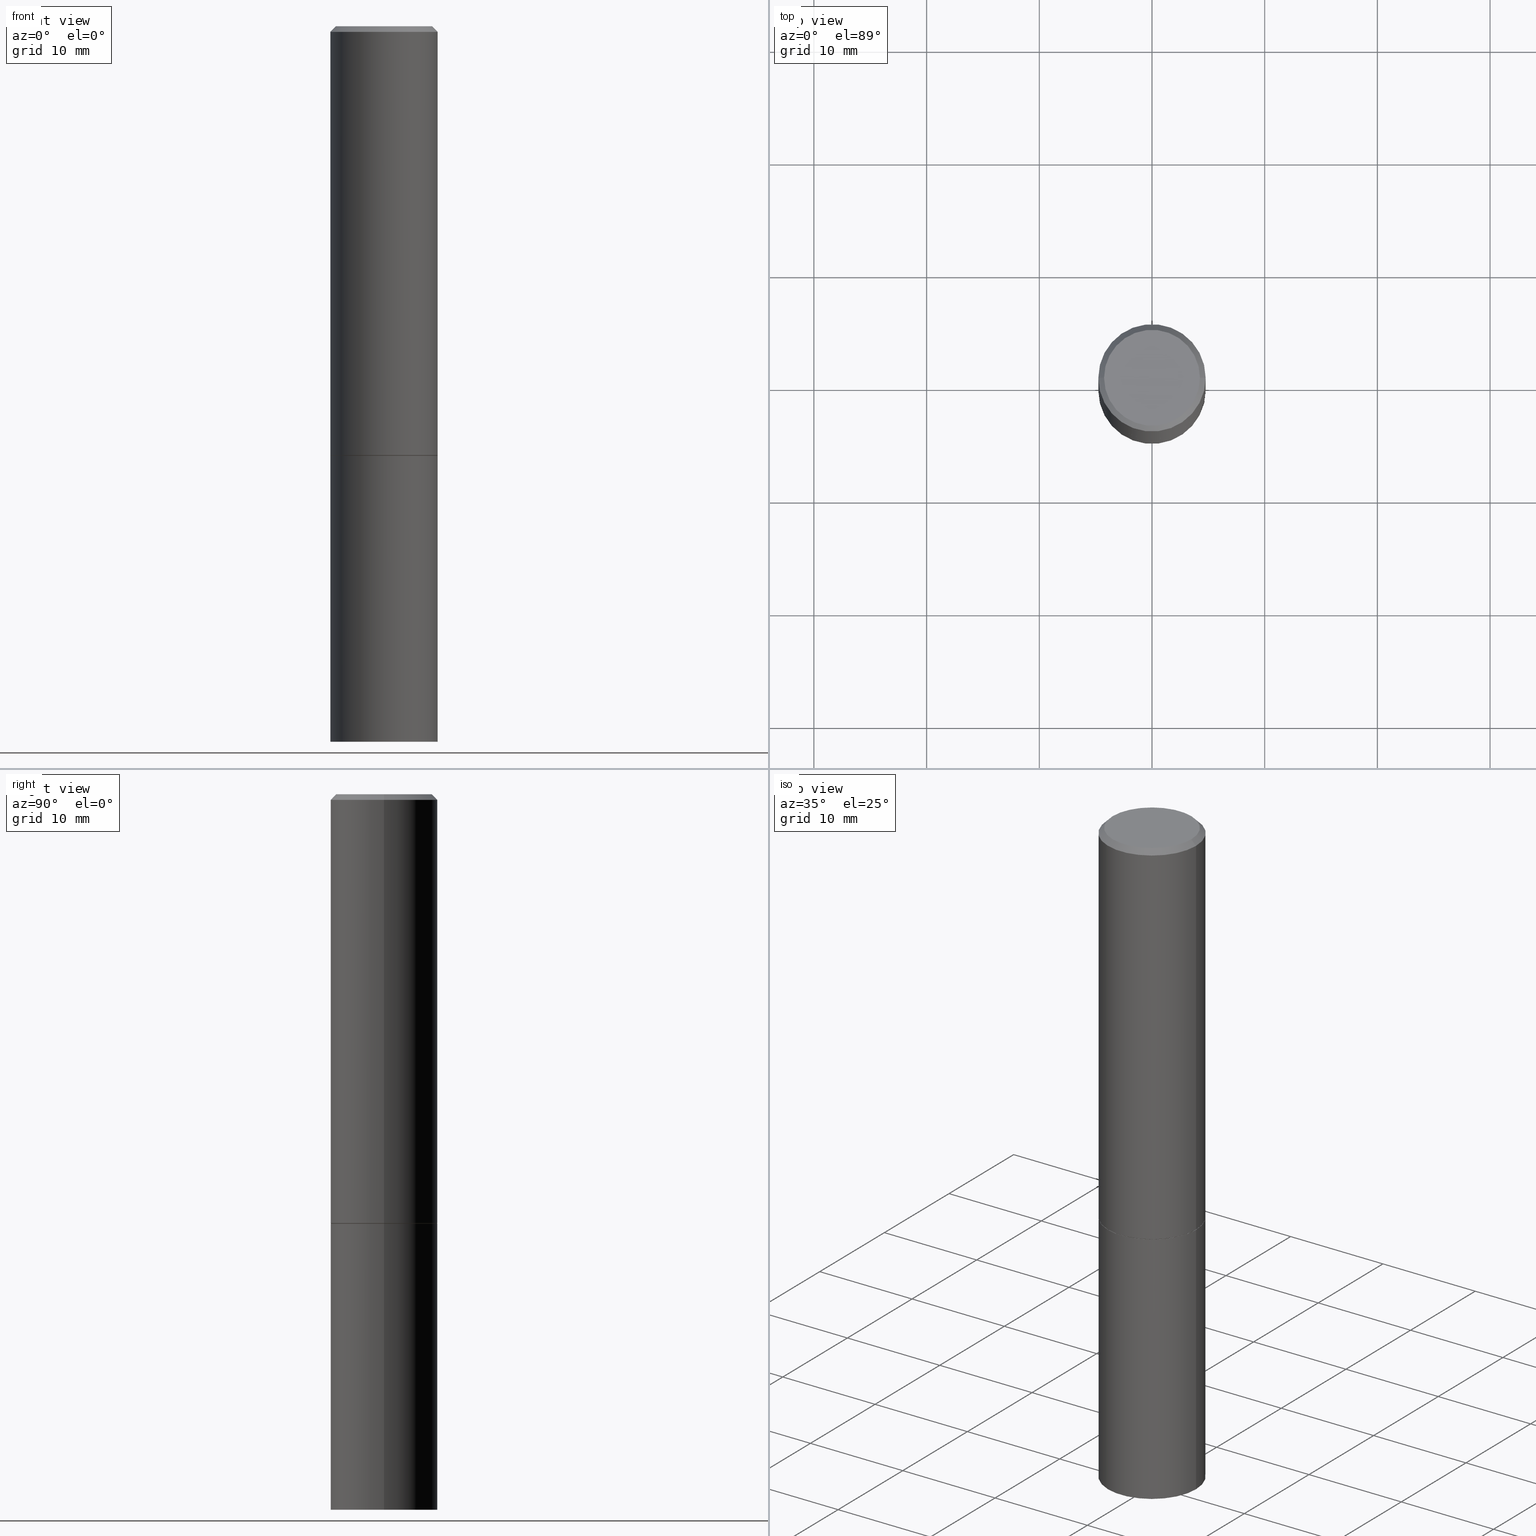
[diagram: canonical four-view strip — front | top / right | iso, engineering-drawing reading convention]
A machine part, canonical four-view strip (front | top / right | iso — engineering-drawing reading convention). The complete STEP part file that produces these views, byte-faithful:
ISO-10303-21;
HEADER;
FILE_DESCRIPTION (( 'STEP AP203' ),
    '1' );
FILE_NAME ('39547.STEP',
    '2024-02-28T00:49:12',
    ( '' ),
    ( '' ),
    'SwSTEP 2.0',
    'SolidWorks 2023',
    '' );
FILE_SCHEMA (( 'CONFIG_CONTROL_DESIGN' ));
ENDSEC;

DATA;
#1 = CARTESIAN_POINT ( 'NONE',  ( 3.665757740471519853E-29, -5.233730526925875958E-15, -1.499000000000000110 ) ) ;
#2 = VECTOR ( 'NONE', #195, 39.37007874015748143 ) ;
#3 = ORIENTED_EDGE ( 'NONE', *, *, #94, .T. ) ;
#4 = FACE_OUTER_BOUND ( 'NONE', #41, .T. ) ;
#5 = ORIENTED_EDGE ( 'NONE', *, *, #9, .F. ) ;
#6 = CARTESIAN_POINT ( 'NONE',  ( 0.1674999999999998157, -1.252653207992877105E-15, 8.469775550109232378E-30 ) ) ;
#7 = ORIENTED_EDGE ( 'NONE', *, *, #194, .F. ) ;
#8 = CC_DESIGN_APPROVAL ( #222, ( #348 ) ) ;
#9 = EDGE_CURVE ( 'NONE', #275, #179, #149, .T. ) ;
#10 = ORIENTED_EDGE ( 'NONE', *, *, #232, .T. ) ;
#11 = VERTEX_POINT ( 'NONE', #12 ) ;
#12 = CARTESIAN_POINT ( 'NONE',  ( -0.1875000000000000278, -5.650695048136103317E-15, -2.500000000000000000 ) ) ;
#13 = CARTESIAN_POINT ( 'NONE',  ( 0.1874999999999998057, -1.356173001359023888E-15, -0.02000000000000004205 ) ) ;
#14 = DIRECTION ( 'NONE',  ( 2.438088387897960049E-29, -3.491481338843145188E-15, -1.000000000000000000 ) ) ;
#15 = EDGE_CURVE ( 'NONE', #179, #329, #351, .T. ) ;
#16 = DIMENSIONAL_EXPONENTS ( 1.000000000000000000, 0.000000000000000000, 0.000000000000000000, 0.000000000000000000, 0.000000000000000000, 0.000000000000000000, 0.000000000000000000 ) ;
#17 = ORIENTED_EDGE ( 'NONE', *, *, #261, .F. ) ;
#18 = CC_DESIGN_PERSON_AND_ORGANIZATION_ASSIGNMENT ( #161, #276, ( #308 ) ) ;
#19 = ORIENTED_EDGE ( 'NONE', *, *, #169, .T. ) ;
#20 = PERSON_AND_ORGANIZATION ( #35, #178 ) ;
#21 = DIRECTION ( 'NONE',  ( 1.000000000000000000, -6.982962677686269077E-15, 0.000000000000000000 ) ) ;
#22 = AXIS2_PLACEMENT_3D ( 'NONE', #47, #319, #92 ) ;
#23 = ORIENTED_EDGE ( 'NONE', *, *, #109, .T. ) ;
#24 = CC_DESIGN_PERSON_AND_ORGANIZATION_ASSIGNMENT ( #252, #328, ( #348 ) ) ;
#25 = COORDINATED_UNIVERSAL_TIME_OFFSET ( 5, 0, .BEHIND. ) ;
#26 = CARTESIAN_POINT ( 'NONE',  ( -0.1674999999999998157, 1.204561061900879272E-15, -8.301862719484101980E-30 ) ) ;
#27 = APPROVAL_ROLE ( '' ) ;
#28 = LINE ( 'NONE', #359, #321 ) ;
#29 = PERSON_AND_ORGANIZATION ( #35, #178 ) ;
#30 = UNCERTAINTY_MEASURE_WITH_UNIT (LENGTH_MEASURE( 1.000000000000000082E-05 ), #241, 'distance_accuracy_value', 'NONE');
#31 = ADVANCED_FACE ( 'NONE', ( #53 ), #156, .F. ) ;
#32 = DIRECTION ( 'NONE',  ( 0.000000000000000000, 0.000000000000000000, 1.000000000000000000 ) ) ;
#33 = LINE ( 'NONE', #86, #2 ) ;
#34 =( GEOMETRIC_REPRESENTATION_CONTEXT ( 3 ) GLOBAL_UNCERTAINTY_ASSIGNED_CONTEXT ( ( #30 ) ) GLOBAL_UNIT_ASSIGNED_CONTEXT ( ( #241, #323, #350 ) ) REPRESENTATION_CONTEXT ( 'NONE', 'WORKASPACE' ) );
#35 = PERSON ( 'UNSPECIFIED', 'UNSPECIFIED', 'UNSPECIFIED', ('UNSPECIFIED'), ('UNSPECIFIED'), ('UNSPECIFIED') ) ;
#36 = LINE ( 'NONE', #166, #143 ) ;
#37 = CALENDAR_DATE ( 2024, 27, 2 ) ;
#38 = CARTESIAN_POINT ( 'NONE',  ( 4.890937612370283668E-31, -6.982962677686305168E-17, -0.02000000000000004205 ) ) ;
#39 = COORDINATED_UNIVERSAL_TIME_OFFSET ( 5, 0, .BEHIND. ) ;
#40 = APPLICATION_CONTEXT ( 'configuration controlled 3d designs of mechanical parts and assemblies' ) ;
#41 = EDGE_LOOP ( 'NONE', ( #163, #324, #301, #358 ) ) ;
#42 = VECTOR ( 'NONE', #340, 39.37007874015748143 ) ;
#43 = DIRECTION ( 'NONE',  ( -2.445468806185136597E-29, 3.491481338843145583E-15, 1.000000000000000000 ) ) ;
#44 = ORIENTED_EDGE ( 'NONE', *, *, #15, .F. ) ;
#45 = CARTESIAN_POINT ( 'NONE',  ( 3.668203209277706016E-29, -5.237222008264719754E-15, -1.500000000000000444 ) ) ;
#46 = ORIENTED_EDGE ( 'NONE', *, *, #61, .F. ) ;
#47 = CARTESIAN_POINT ( 'NONE',  ( 0.000000000000000000, 0.000000000000000000, 0.000000000000000000 ) ) ;
#48 = VECTOR ( 'NONE', #217, 39.37007874015748143 ) ;
#49 = LOCAL_TIME ( 19, 49, 12.00000000000000000, #365 ) ;
#50 = ORIENTED_EDGE ( 'NONE', *, *, #363, .T. ) ;
#51 = MANIFOLD_SOLID_BREP ( 'Body-Move/Copy2[1]', #135 ) ;
#52 = DIRECTION ( 'NONE',  ( -2.445468806185136597E-29, 3.491481338843145583E-15, 1.000000000000000000 ) ) ;
#53 = FACE_OUTER_BOUND ( 'NONE', #267, .T. ) ;
#54 = AXIS2_PLACEMENT_3D ( 'NONE', #45, #162, #21 ) ;
#55 = MANIFOLD_SOLID_BREP ( 'Body-Move/Copy2[2]', #278 ) ;
#56 = EDGE_CURVE ( 'NONE', #292, #329, #28, .T. ) ;
#57 = CIRCLE ( 'NONE', #233, 0.1875000000000000278 ) ;
#58 = DIRECTION ( 'NONE',  ( 1.000000000000000000, -6.982962677686265922E-15, 4.876176775795935793E-29 ) ) ;
#59 = APPLICATION_PROTOCOL_DEFINITION ( 'international standard', 'config_control_design', 1994, #40 ) ;
#60 = DIRECTION ( 'NONE',  ( -2.445468806185136597E-29, 3.491481338843145583E-15, 1.000000000000000000 ) ) ;
#61 = EDGE_CURVE ( 'NONE', #273, #327, #223, .T. ) ;
#62 = DATE_TIME_ROLE ( 'creation_date' ) ;
#63 = CARTESIAN_POINT ( 'NONE',  ( -0.1864999999999999714, -3.912059806072132914E-15, -1.500000000000000444 ) ) ;
#64 = COORDINATED_UNIVERSAL_TIME_OFFSET ( 5, 0, .BEHIND. ) ;
#65 = CARTESIAN_POINT ( 'NONE',  ( 4.890937612370283668E-31, -6.982962677686305168E-17, -0.02000000000000004205 ) ) ;
#66 = APPROVAL_PERSON_ORGANIZATION ( #29, #125, #27 ) ;
#67 = CC_DESIGN_PERSON_AND_ORGANIZATION_ASSIGNMENT ( #20, #108, ( #164 ) ) ;
#68 = DIRECTION ( 'NONE',  ( 1.000000000000000000, -6.982962677686266711E-15, 0.000000000000000000 ) ) ;
#69 = CC_DESIGN_PERSON_AND_ORGANIZATION_ASSIGNMENT ( #199, #341, ( #270 ) ) ;
#70 = DIRECTION ( 'NONE',  ( 1.000000000000000000, -6.982962677686266711E-15, 0.000000000000000000 ) ) ;
#71 = CARTESIAN_POINT ( 'NONE',  ( -0.1874999999999999722, -1.319512447301180399E-15, -1.499000000000000110 ) ) ;
#72 = ORIENTED_EDGE ( 'NONE', *, *, #180, .T. ) ;
#73 = CIRCLE ( 'NONE', #190, 0.1875000000000000278 ) ;
#74 = CARTESIAN_POINT ( 'NONE',  ( 0.000000000000000000, 0.000000000000000000, 0.000000000000000000 ) ) ;
#75 = EDGE_CURVE ( 'NONE', #235, #327, #73, .T. ) ;
#76 = DATE_AND_TIME ( #37, #302 ) ;
#77 = EDGE_LOOP ( 'NONE', ( #221, #98, #126, #160 ) ) ;
#78 = VECTOR ( 'NONE', #173, 39.37007874015748143 ) ;
#79 = AXIS2_PLACEMENT_3D ( 'NONE', #130, #32, #330 ) ;
#80 = DIRECTION ( 'NONE',  ( 1.000000000000000000, -6.982962677686266711E-15, 4.876176775795936914E-29 ) ) ;
#81 = ADVANCED_FACE ( 'NONE', ( #334 ), #176, .T. ) ;
#82 = CALENDAR_DATE ( 2024, 27, 2 ) ;
#83 = CARTESIAN_POINT ( 'NONE',  ( 3.668203209277704895E-29, -5.237222008264718177E-15, -1.500000000000000222 ) ) ;
#84 = APPROVAL_STATUS ( 'not_yet_approved' ) ;
#85 = AXIS2_PLACEMENT_3D ( 'NONE', #175, #315, #291 ) ;
#86 = CARTESIAN_POINT ( 'NONE',  ( 0.1864999999999999714, -6.539544547653208748E-15, -1.500000000000000444 ) ) ;
#87 = FACE_OUTER_BOUND ( 'NONE', #77, .T. ) ;
#88 = CARTESIAN_POINT ( 'NONE',  ( 0.1874999999999999167, -1.309305502066174219E-15, 9.142831454617375408E-30 ) ) ;
#89 = DIRECTION ( 'NONE',  ( -2.445468806185136597E-29, 3.491481338843145583E-15, 1.000000000000000000 ) ) ;
#90 = CC_DESIGN_DATE_AND_TIME_ASSIGNMENT ( #280, #62, ( #348 ) ) ;
#91 = DIRECTION ( 'NONE',  ( 1.000000000000000000, -6.982962677686269077E-15, 0.000000000000000000 ) ) ;
#92 = DIRECTION ( 'NONE',  ( 1.000000000000000000, -6.982962677686265922E-15, 4.876176775795935793E-29 ) ) ;
#93 = ORIENTED_EDGE ( 'NONE', *, *, #363, .F. ) ;
#94 = EDGE_CURVE ( 'NONE', #120, #355, #33, .T. ) ;
#95 = VERTEX_POINT ( 'NONE', #228 ) ;
#96 = CIRCLE ( 'NONE', #102, 0.1674999999999998157 ) ;
#97 = DIRECTION ( 'NONE',  ( -2.445468806185136597E-29, 3.491481338843145583E-15, 1.000000000000000000 ) ) ;
#98 = ORIENTED_EDGE ( 'NONE', *, *, #56, .T. ) ;
#99 = DIRECTION ( 'NONE',  ( -2.445468806185136597E-29, 3.491481338843145583E-15, 1.000000000000000000 ) ) ;
#100 = FACE_OUTER_BOUND ( 'NONE', #119, .T. ) ;
#101 = CIRCLE ( 'NONE', #338, 0.1874999999999998057 ) ;
#102 = AXIS2_PLACEMENT_3D ( 'NONE', #189, #271, #80 ) ;
#103 = DIRECTION ( 'NONE',  ( 1.000000000000000000, -6.982962677686265922E-15, 4.876176775795935793E-29 ) ) ;
#104 = CARTESIAN_POINT ( 'NONE',  ( -0.1874999999999998057, 1.239475875289310527E-15, -0.02000000000000004205 ) ) ;
#105 = CIRCLE ( 'NONE', #296, 0.1875000000000000278 ) ;
#106 = ORIENTED_EDGE ( 'NONE', *, *, #194, .T. ) ;
#107 = FACE_OUTER_BOUND ( 'NONE', #182, .T. ) ;
#108 = PERSON_AND_ORGANIZATION_ROLE ( 'classification_officer' ) ;
#109 = EDGE_CURVE ( 'NONE', #11, #273, #187, .T. ) ;
#110 = CIRCLE ( 'NONE', #54, 0.1864999999999999714 ) ;
#111 = PLANE ( 'NONE',  #215 ) ;
#112 = DIRECTION ( 'NONE',  ( -2.438088387897960049E-29, 3.491481338843145188E-15, 1.000000000000000000 ) ) ;
#113 = CARTESIAN_POINT ( 'NONE',  ( 0.000000000000000000, 0.000000000000000000, 0.000000000000000000 ) ) ;
#114 = AXIS2_PLACEMENT_3D ( 'NONE', #299, #52, #154 ) ;
#115 = CARTESIAN_POINT ( 'NONE',  ( 1.309305502066236145E-15, 0.1874999999999912847, -2.500000000000000444 ) ) ;
#116 = DATE_AND_TIME ( #142, #287 ) ;
#117 = ADVANCED_FACE ( 'NONE', ( #366 ), #111, .F. ) ;
#118 = CYLINDRICAL_SURFACE ( 'NONE', #316, 0.1874999999999999167 ) ;
#119 = EDGE_LOOP ( 'NONE', ( #72, #318, #247, #46 ) ) ;
#120 = VERTEX_POINT ( 'NONE', #250 ) ;
#121 = CIRCLE ( 'NONE', #362, 0.1875000000000000278 ) ;
#122 = CC_DESIGN_APPROVAL ( #174, ( #164 ) ) ;
#123 = CARTESIAN_POINT ( 'NONE',  ( 3.668203209277706016E-29, -5.237222008264719754E-15, -1.500000000000000444 ) ) ;
#124 = ORIENTED_EDGE ( 'NONE', *, *, #201, .F. ) ;
#125 = APPROVAL ( #84, 'UNSPECIFIED' ) ;
#126 = ORIENTED_EDGE ( 'NONE', *, *, #169, .F. ) ;
#127 = ORIENTED_EDGE ( 'NONE', *, *, #61, .T. ) ;
#128 = CIRCLE ( 'NONE', #186, 0.1874999999999998057 ) ;
#129 = APPROVAL_PERSON_ORGANIZATION ( #254, #174, #205 ) ;
#130 = CARTESIAN_POINT ( 'NONE',  ( 0.000000000000000000, 0.000000000000000000, 0.000000000000000000 ) ) ;
#131 = ORIENTED_EDGE ( 'NONE', *, *, #180, .F. ) ;
#132 = DIRECTION ( 'NONE',  ( 1.000000000000000000, -6.982962677686266711E-15, 0.000000000000000000 ) ) ;
#133 = CALENDAR_DATE ( 2024, 27, 2 ) ;
#134 = CARTESIAN_POINT ( 'NONE',  ( 6.113672015462842613E-29, -8.728703347107864943E-15, -2.500000000000000000 ) ) ;
#135 = CLOSED_SHELL ( 'NONE', ( #352, #184, #289, #244 ) ) ;
#136 = FACE_OUTER_BOUND ( 'NONE', #238, .T. ) ;
#137 = APPROVAL_DATE_TIME ( #285, #222 ) ;
#138 = EDGE_CURVE ( 'NONE', #355, #292, #57, .T. ) ;
#139 = DIRECTION ( 'NONE',  ( -0.7071067811864388819, 7.493145998869961307E-15, 0.7071067811866561525 ) ) ;
#140 = DATE_TIME_ROLE ( 'classification_date' ) ;
#141 = DIRECTION ( 'NONE',  ( -2.445468806185136597E-29, 3.491481338843145583E-15, 1.000000000000000000 ) ) ;
#142 = CALENDAR_DATE ( 2024, 27, 2 ) ;
#143 = VECTOR ( 'NONE', #200, 39.37007874015748143 ) ;
#144 = FACE_OUTER_BOUND ( 'NONE', #158, .T. ) ;
#145 = EDGE_LOOP ( 'NONE', ( #5, #106, #19, #44 ) ) ;
#146 = CARTESIAN_POINT ( 'NONE',  ( 0.1875000000000000278, -6.546527510330893974E-15, -1.500000000000000222 ) ) ;
#147 = ORIENTED_EDGE ( 'NONE', *, *, #15, .T. ) ;
#148 = DIRECTION ( 'NONE',  ( -1.000000000000000000, 6.982962677686265922E-15, -4.876176775795935793E-29 ) ) ;
#149 = CIRCLE ( 'NONE', #114, 0.1674999999999998157 ) ;
#150 = DIRECTION ( 'NONE',  ( -2.445468806185136597E-29, 3.491481338843145583E-15, 1.000000000000000000 ) ) ;
#151 = EDGE_CURVE ( 'NONE', #355, #344, #309, .T. ) ;
#152 = ORIENTED_EDGE ( 'NONE', *, *, #274, .T. ) ;
#153 = APPLICATION_PROTOCOL_DEFINITION ( 'international standard', 'config_control_design', 1994, #246 ) ;
#154 = DIRECTION ( 'NONE',  ( 1.000000000000000000, -6.982962677686266711E-15, 4.876176775795936914E-29 ) ) ;
#155 = PERSON_AND_ORGANIZATION ( #35, #178 ) ;
#156 = PLANE ( 'NONE',  #263 ) ;
#157 = EDGE_CURVE ( 'NONE', #292, #355, #105, .T. ) ;
#158 = EDGE_LOOP ( 'NONE', ( #124, #354, #3, #304 ) ) ;
#159 = CARTESIAN_POINT ( 'NONE',  ( 0.1875000000000000278, -6.543036028992050967E-15, -1.499000000000000110 ) ) ;
#160 = ORIENTED_EDGE ( 'NONE', *, *, #151, .F. ) ;
#161 = PERSON_AND_ORGANIZATION ( #35, #178 ) ;
#162 = DIRECTION ( 'NONE',  ( -2.445468806185136597E-29, 3.491481338843145583E-15, 1.000000000000000000 ) ) ;
#163 = ORIENTED_EDGE ( 'NONE', *, *, #56, .F. ) ;
#164 = SECURITY_CLASSIFICATION ( '', '', #360 ) ;
#165 = DIRECTION ( 'NONE',  ( 1.000000000000000000, -6.982962677686266711E-15, 0.000000000000000000 ) ) ;
#166 = CARTESIAN_POINT ( 'NONE',  ( 0.1874999999999998057, -1.356173001359023888E-15, -0.02000000000000004205 ) ) ;
#167 = COORDINATED_UNIVERSAL_TIME_OFFSET ( 5, 0, .BEHIND. ) ;
#168 = DIRECTION ( 'NONE',  ( -1.000000000000000000, 6.982962677686265922E-15, -4.876176775795935793E-29 ) ) ;
#169 = EDGE_CURVE ( 'NONE', #344, #329, #101, .T. ) ;
#170 = CONICAL_SURFACE ( 'NONE', #220, 0.1864999999999999714, 0.7853981633972946241 ) ;
#171 = CC_DESIGN_SECURITY_CLASSIFICATION ( #164, ( #308 ) ) ;
#172 = DIRECTION ( 'NONE',  ( -2.445468806185136597E-29, 3.491481338843145583E-15, 1.000000000000000000 ) ) ;
#173 = DIRECTION ( 'NONE',  ( -2.445468806185136877E-29, 3.491481338843145188E-15, 1.000000000000000000 ) ) ;
#174 = APPROVAL ( #339, 'UNSPECIFIED' ) ;
#175 = CARTESIAN_POINT ( 'NONE',  ( 4.890937612370283668E-31, -6.982962677686305168E-17, -0.02000000000000004205 ) ) ;
#176 = CONICAL_SURFACE ( 'NONE', #196, 0.1874999999999998057, 0.7853981633974471688 ) ;
#177 = CARTESIAN_POINT ( 'NONE',  ( 3.668203209277706016E-29, -5.237222008264719754E-15, -1.500000000000000444 ) ) ;
#178 = ORGANIZATION ( 'UNSPECIFIED', 'UNSPECIFIED', '' ) ;
#179 = VERTEX_POINT ( 'NONE', #26 ) ;
#180 = EDGE_CURVE ( 'NONE', #273, #11, #284, .T. ) ;
#181 = DIRECTION ( 'NONE',  ( -2.445468806185136597E-29, 3.491481338843145583E-15, 1.000000000000000000 ) ) ;
#182 = EDGE_LOOP ( 'NONE', ( #219, #23, #127, #260 ) ) ;
#183 = CARTESIAN_POINT ( 'NONE',  ( 1.309305502066211690E-15, 0.1874999999999947820, -1.500000000000000666 ) ) ;
#184 = ADVANCED_FACE ( 'NONE', ( #136 ), #248, .T. ) ;
#185 = DIRECTION ( 'NONE',  ( 2.438088387897960049E-29, -3.491481338843145188E-15, -1.000000000000000000 ) ) ;
#186 = AXIS2_PLACEMENT_3D ( 'NONE', #262, #99, #70 ) ;
#187 = CIRCLE ( 'NONE', #300, 0.1875000000000000278 ) ;
#188 = EDGE_LOOP ( 'NONE', ( #17, #257 ) ) ;
#189 = CARTESIAN_POINT ( 'NONE',  ( 0.000000000000000000, 0.000000000000000000, 0.000000000000000000 ) ) ;
#190 = AXIS2_PLACEMENT_3D ( 'NONE', #283, #331, #251 ) ;
#191 = LENGTH_MEASURE_WITH_UNIT ( LENGTH_MEASURE( 0.02539999999999999897 ), #353 );
#192 = CC_DESIGN_DATE_AND_TIME_ASSIGNMENT ( #76, #140, ( #164 ) ) ;
#193 = ORIENTED_EDGE ( 'NONE', *, *, #109, .F. ) ;
#194 = EDGE_CURVE ( 'NONE', #275, #344, #36, .T. ) ;
#195 = DIRECTION ( 'NONE',  ( 0.7071067811864388819, -2.468850131081119129E-15, 0.7071067811866561525 ) ) ;
#196 = AXIS2_PLACEMENT_3D ( 'NONE', #65, #337, #281 ) ;
#197 = DIRECTION ( 'NONE',  ( -2.445468806185136877E-29, 3.491481338843145188E-15, 1.000000000000000000 ) ) ;
#198 = APPROVAL_DATE_TIME ( #336, #125 ) ;
#199 = PERSON_AND_ORGANIZATION ( #35, #178 ) ;
#200 = DIRECTION ( 'NONE',  ( 0.7071067811865466846, -7.319954787623252890E-15, -0.7071067811865483499 ) ) ;
#201 = EDGE_CURVE ( 'NONE', #95, #292, #227, .T. ) ;
#202 = CARTESIAN_POINT ( 'NONE',  ( 6.113672015462842613E-29, -8.728703347107864943E-15, -2.500000000000000000 ) ) ;
#203 = LOCAL_TIME ( 19, 49, 12.00000000000000000, #25 ) ;
#204 = DIRECTION ( 'NONE',  ( 1.000000000000000000, -6.982962677686266711E-15, 0.000000000000000000 ) ) ;
#205 = APPROVAL_ROLE ( '' ) ;
#206 = FACE_OUTER_BOUND ( 'NONE', #305, .T. ) ;
#207 = APPROVAL_DATE_TIME ( #116, #174 ) ;
#208 = ORIENTED_EDGE ( 'NONE', *, *, #138, .F. ) ;
#209 = AXIS2_PLACEMENT_3D ( 'NONE', #123, #97, #342 ) ;
#210 = CC_DESIGN_APPROVAL ( #125, ( #308 ) ) ;
#211 = CARTESIAN_POINT ( 'NONE',  ( 0.1875000000000000278, -1.003800884917403995E-14, -2.500000000000000000 ) ) ;
#212 = ORIENTED_EDGE ( 'NONE', *, *, #261, .T. ) ;
#213 = FACE_OUTER_BOUND ( 'NONE', #277, .T. ) ;
#214 = CARTESIAN_POINT ( 'NONE',  ( 0.000000000000000000, 0.000000000000000000, 0.000000000000000000 ) ) ;
#215 = AXIS2_PLACEMENT_3D ( 'NONE', #364, #112, #58 ) ;
#216 = AXIS2_PLACEMENT_3D ( 'NONE', #214, #303, #103 ) ;
#217 = DIRECTION ( 'NONE',  ( -0.7071067811865466846, 2.468850131082247989E-15, -0.7071067811865483499 ) ) ;
#218 = PRODUCT_DEFINITION_SHAPE ( 'NONE', 'NONE',  #348 ) ;
#219 = ORIENTED_EDGE ( 'NONE', *, *, #294, .F. ) ;
#220 = AXIS2_PLACEMENT_3D ( 'NONE', #297, #150, #91 ) ;
#221 = ORIENTED_EDGE ( 'NONE', *, *, #138, .T. ) ;
#222 = APPROVAL ( #239, 'UNSPECIFIED' ) ;
#223 = LINE ( 'NONE', #290, #345 ) ;
#224 = CONICAL_SURFACE ( 'NONE', #268, 0.1864999999999999714, 0.7853981633972946241 ) ;
#225 = MECHANICAL_CONTEXT ( 'NONE', #40, 'mechanical' ) ;
#226 = ADVANCED_FACE ( 'NONE', ( #87 ), #253, .T. ) ;
#227 = LINE ( 'NONE', #63, #293 ) ;
#228 = CARTESIAN_POINT ( 'NONE',  ( -0.1864999999999999714, -3.906761351723910512E-15, -1.500000000000000444 ) ) ;
#229 = DIRECTION ( 'NONE',  ( 1.000000000000000000, -6.982962677686266711E-15, 0.000000000000000000 ) ) ;
#230 = AXIS2_PLACEMENT_3D ( 'NONE', #183, #185, #148 ) ;
#231 = DIRECTION ( 'NONE',  ( 1.000000000000000000, -6.982962677686265922E-15, 4.876176775795935793E-29 ) ) ;
#232 = EDGE_CURVE ( 'NONE', #327, #235, #121, .T. ) ;
#233 = AXIS2_PLACEMENT_3D ( 'NONE', #332, #255, #310 ) ;
#234 = LINE ( 'NONE', #317, #42 ) ;
#235 = VERTEX_POINT ( 'NONE', #279 ) ;
#236 = CC_DESIGN_PERSON_AND_ORGANIZATION_ASSIGNMENT ( #249, #282, ( #308 ) ) ;
#237 = CONICAL_SURFACE ( 'NONE', #85, 0.1874999999999998057, 0.7853981633974471688 ) ;
#238 = EDGE_LOOP ( 'NONE', ( #131, #193 ) ) ;
#239 = APPROVAL_STATUS ( 'not_yet_approved' ) ;
#240 = CYLINDRICAL_SURFACE ( 'NONE', #216, 0.1875000000000000278 ) ;
#241 =( CONVERSION_BASED_UNIT ( 'INCH', #191 ) LENGTH_UNIT ( ) NAMED_UNIT ( #16 ) );
#242 = ORIENTED_EDGE ( 'NONE', *, *, #201, .T. ) ;
#243 = ORIENTED_EDGE ( 'NONE', *, *, #94, .F. ) ;
#244 = ADVANCED_FACE ( 'NONE', ( #107 ), #347, .T. ) ;
#245 = AXIS2_PLACEMENT_3D ( 'NONE', #115, #361, #288 ) ;
#246 = APPLICATION_CONTEXT ( 'configuration controlled 3d designs of mechanical parts and assemblies' ) ;
#247 = ORIENTED_EDGE ( 'NONE', *, *, #232, .F. ) ;
#248 = PLANE ( 'NONE',  #245 ) ;
#249 = PERSON_AND_ORGANIZATION ( #35, #178 ) ;
#250 = CARTESIAN_POINT ( 'NONE',  ( 0.1864999999999999714, -6.539544547653208748E-15, -1.500000000000000444 ) ) ;
#251 = DIRECTION ( 'NONE',  ( 1.000000000000000000, -6.982962677686266711E-15, 0.000000000000000000 ) ) ;
#252 = PERSON_AND_ORGANIZATION ( #35, #178 ) ;
#253 = CYLINDRICAL_SURFACE ( 'NONE', #349, 0.1874999999999999167 ) ;
#254 = PERSON_AND_ORGANIZATION ( #35, #178 ) ;
#255 = DIRECTION ( 'NONE',  ( -2.445468806185136597E-29, 3.491481338843145583E-15, 1.000000000000000000 ) ) ;
#256 = DIRECTION ( 'NONE',  ( 1.000000000000000000, -6.982962677686269077E-15, 0.000000000000000000 ) ) ;
#257 = ORIENTED_EDGE ( 'NONE', *, *, #343, .F. ) ;
#258 = SHAPE_DEFINITION_REPRESENTATION ( #218, #272 ) ;
#259 = CARTESIAN_POINT ( 'NONE',  ( -0.1874999999999998057, 1.239475875289310527E-15, -0.02000000000000004205 ) ) ;
#260 = ORIENTED_EDGE ( 'NONE', *, *, #75, .F. ) ;
#261 = EDGE_CURVE ( 'NONE', #120, #95, #326, .T. ) ;
#262 = CARTESIAN_POINT ( 'NONE',  ( 4.890937612370283668E-31, -6.982962677686305168E-17, -0.02000000000000004205 ) ) ;
#263 = AXIS2_PLACEMENT_3D ( 'NONE', #269, #14, #168 ) ;
#264 = FACE_OUTER_BOUND ( 'NONE', #265, .T. ) ;
#265 = EDGE_LOOP ( 'NONE', ( #212, #242, #208, #243 ) ) ;
#266 = PLANE ( 'NONE',  #230 ) ;
#267 = EDGE_LOOP ( 'NONE', ( #50, #356 ) ) ;
#268 = AXIS2_PLACEMENT_3D ( 'NONE', #177, #43, #256 ) ;
#269 = CARTESIAN_POINT ( 'NONE',  ( 1.169646248512448412E-15, 0.1674999999999998157, -5.848231242562262767E-16 ) ) ;
#270 = PRODUCT ( '39547', '39547', '', ( #225 ) ) ;
#271 = DIRECTION ( 'NONE',  ( -2.445468806185136597E-29, 3.491481338843145583E-15, 1.000000000000000000 ) ) ;
#272 = ADVANCED_BREP_SHAPE_REPRESENTATION ( '39547', ( #51, #55, #79 ), #34 ) ;
#273 = VERTEX_POINT ( 'NONE', #211 ) ;
#274 = EDGE_CURVE ( 'NONE', #329, #344, #128, .T. ) ;
#275 = VERTEX_POINT ( 'NONE', #6 ) ;
#276 = PERSON_AND_ORGANIZATION_ROLE ( 'creator' ) ;
#277 = EDGE_LOOP ( 'NONE', ( #10, #346 ) ) ;
#278 = CLOSED_SHELL ( 'NONE', ( #312, #226, #81, #320, #335, #325, #117, #31 ) ) ;
#279 = CARTESIAN_POINT ( 'NONE',  ( -0.1875000000000000278, -5.650695048136103317E-15, -1.500000000000000222 ) ) ;
#280 = DATE_AND_TIME ( #82, #203 ) ;
#281 = DIRECTION ( 'NONE',  ( -1.000000000000000000, 6.982962677686266711E-15, 0.000000000000000000 ) ) ;
#282 = PERSON_AND_ORGANIZATION_ROLE ( 'design_supplier' ) ;
#283 = CARTESIAN_POINT ( 'NONE',  ( 3.668203209277704895E-29, -5.237222008264718177E-15, -1.500000000000000222 ) ) ;
#284 = CIRCLE ( 'NONE', #307, 0.1875000000000000278 ) ;
#285 = DATE_AND_TIME ( #333, #313 ) ;
#286 = DESIGN_CONTEXT ( 'detailed design', #246, 'design' ) ;
#287 = LOCAL_TIME ( 19, 49, 12.00000000000000000, #39 ) ;
#288 = DIRECTION ( 'NONE',  ( -1.000000000000000000, 6.982962677686265922E-15, -4.876176775795935793E-29 ) ) ;
#289 = ADVANCED_FACE ( 'NONE', ( #213 ), #266, .F. ) ;
#290 = CARTESIAN_POINT ( 'NONE',  ( 0.1875000000000000278, -1.309305502066175008E-15, 9.142831454617381013E-30 ) ) ;
#291 = DIRECTION ( 'NONE',  ( -1.000000000000000000, 6.982962677686266711E-15, 0.000000000000000000 ) ) ;
#292 = VERTEX_POINT ( 'NONE', #71 ) ;
#293 = VECTOR ( 'NONE', #139, 39.37007874015748143 ) ;
#294 = EDGE_CURVE ( 'NONE', #11, #235, #234, .T. ) ;
#295 = DIRECTION ( 'NONE',  ( 1.000000000000000000, -6.982962677686265922E-15, 4.876176775795935793E-29 ) ) ;
#296 = AXIS2_PLACEMENT_3D ( 'NONE', #1, #60, #204 ) ;
#297 = CARTESIAN_POINT ( 'NONE',  ( 3.668203209277706016E-29, -5.237222008264719754E-15, -1.500000000000000444 ) ) ;
#298 = APPROVAL_PERSON_ORGANIZATION ( #155, #222, #322 ) ;
#299 = CARTESIAN_POINT ( 'NONE',  ( 0.000000000000000000, 0.000000000000000000, 0.000000000000000000 ) ) ;
#300 = AXIS2_PLACEMENT_3D ( 'NONE', #134, #172, #68 ) ;
#301 = ORIENTED_EDGE ( 'NONE', *, *, #151, .T. ) ;
#302 = LOCAL_TIME ( 19, 49, 12.00000000000000000, #167 ) ;
#303 = DIRECTION ( 'NONE',  ( -2.445468806185136597E-29, 3.491481338843145583E-15, 1.000000000000000000 ) ) ;
#304 = ORIENTED_EDGE ( 'NONE', *, *, #157, .F. ) ;
#305 = EDGE_LOOP ( 'NONE', ( #7, #93, #147, #152 ) ) ;
#306 = DIRECTION ( 'NONE',  ( -2.445468806185136877E-29, 3.491481338843145188E-15, 1.000000000000000000 ) ) ;
#307 = AXIS2_PLACEMENT_3D ( 'NONE', #202, #311, #132 ) ;
#308 = PRODUCT_DEFINITION_FORMATION_WITH_SPECIFIED_SOURCE ( 'ANY', '', #270, .NOT_KNOWN. ) ;
#309 = LINE ( 'NONE', #88, #78 ) ;
#310 = DIRECTION ( 'NONE',  ( 1.000000000000000000, -6.982962677686266711E-15, 0.000000000000000000 ) ) ;
#311 = DIRECTION ( 'NONE',  ( -2.445468806185136597E-29, 3.491481338843145583E-15, 1.000000000000000000 ) ) ;
#312 = ADVANCED_FACE ( 'NONE', ( #264 ), #170, .T. ) ;
#313 = LOCAL_TIME ( 19, 49, 12.00000000000000000, #64 ) ;
#314 = DIRECTION ( 'NONE',  ( -2.445468806185136597E-29, 3.491481338843145583E-15, 1.000000000000000000 ) ) ;
#315 = DIRECTION ( 'NONE',  ( 2.445468806185136597E-29, -3.491481338843145583E-15, -1.000000000000000000 ) ) ;
#316 = AXIS2_PLACEMENT_3D ( 'NONE', #74, #181, #295 ) ;
#317 = CARTESIAN_POINT ( 'NONE',  ( -0.1875000000000000278, 1.332267629550188046E-15, -9.223003294227947991E-30 ) ) ;
#318 = ORIENTED_EDGE ( 'NONE', *, *, #294, .T. ) ;
#319 = DIRECTION ( 'NONE',  ( -2.445468806185136597E-29, 3.491481338843145583E-15, 1.000000000000000000 ) ) ;
#320 = ADVANCED_FACE ( 'NONE', ( #206 ), #237, .T. ) ;
#321 = VECTOR ( 'NONE', #197, 39.37007874015748143 ) ;
#322 = APPROVAL_ROLE ( '' ) ;
#323 =( NAMED_UNIT ( * ) PLANE_ANGLE_UNIT ( ) SI_UNIT ( $, .RADIAN. ) );
#324 = ORIENTED_EDGE ( 'NONE', *, *, #157, .T. ) ;
#325 = ADVANCED_FACE ( 'NONE', ( #144 ), #224, .T. ) ;
#326 = CIRCLE ( 'NONE', #209, 0.1864999999999999714 ) ;
#327 = VERTEX_POINT ( 'NONE', #146 ) ;
#328 = PERSON_AND_ORGANIZATION_ROLE ( 'creator' ) ;
#329 = VERTEX_POINT ( 'NONE', #259 ) ;
#330 = DIRECTION ( 'NONE',  ( 1.000000000000000000, 0.000000000000000000, 0.000000000000000000 ) ) ;
#331 = DIRECTION ( 'NONE',  ( -2.445468806185136597E-29, 3.491481338843145583E-15, 1.000000000000000000 ) ) ;
#332 = CARTESIAN_POINT ( 'NONE',  ( 3.665757740471519853E-29, -5.233730526925875958E-15, -1.499000000000000110 ) ) ;
#333 = CALENDAR_DATE ( 2024, 27, 2 ) ;
#334 = FACE_OUTER_BOUND ( 'NONE', #145, .T. ) ;
#335 = ADVANCED_FACE ( 'NONE', ( #4 ), #118, .T. ) ;
#336 = DATE_AND_TIME ( #133, #49 ) ;
#337 = DIRECTION ( 'NONE',  ( 2.445468806185136597E-29, -3.491481338843145583E-15, -1.000000000000000000 ) ) ;
#338 = AXIS2_PLACEMENT_3D ( 'NONE', #38, #141, #229 ) ;
#339 = APPROVAL_STATUS ( 'not_yet_approved' ) ;
#340 = DIRECTION ( 'NONE',  ( -2.445468806185136877E-29, 3.491481338843145188E-15, 1.000000000000000000 ) ) ;
#341 = PERSON_AND_ORGANIZATION_ROLE ( 'design_owner' ) ;
#342 = DIRECTION ( 'NONE',  ( 1.000000000000000000, -6.982962677686269077E-15, 0.000000000000000000 ) ) ;
#343 = EDGE_CURVE ( 'NONE', #95, #120, #110, .T. ) ;
#344 = VERTEX_POINT ( 'NONE', #13 ) ;
#345 = VECTOR ( 'NONE', #306, 39.37007874015748143 ) ;
#346 = ORIENTED_EDGE ( 'NONE', *, *, #75, .T. ) ;
#347 = CYLINDRICAL_SURFACE ( 'NONE', #22, 0.1875000000000000278 ) ;
#348 = PRODUCT_DEFINITION ( 'UNKNOWN', '', #308, #286 ) ;
#349 = AXIS2_PLACEMENT_3D ( 'NONE', #113, #89, #231 ) ;
#350 =( NAMED_UNIT ( * ) SI_UNIT ( $, .STERADIAN. ) SOLID_ANGLE_UNIT ( ) );
#351 = LINE ( 'NONE', #104, #48 ) ;
#352 = ADVANCED_FACE ( 'NONE', ( #100 ), #240, .T. ) ;
#353 =( LENGTH_UNIT ( ) NAMED_UNIT ( * ) SI_UNIT ( $, .METRE. ) );
#354 = ORIENTED_EDGE ( 'NONE', *, *, #343, .T. ) ;
#355 = VERTEX_POINT ( 'NONE', #159 ) ;
#356 = ORIENTED_EDGE ( 'NONE', *, *, #9, .T. ) ;
#357 = PRODUCT_RELATED_PRODUCT_CATEGORY ( 'detail', '', ( #270 ) ) ;
#358 = ORIENTED_EDGE ( 'NONE', *, *, #274, .F. ) ;
#359 = CARTESIAN_POINT ( 'NONE',  ( -0.1874999999999999167, 1.332267629550187257E-15, -9.223003294227943787E-30 ) ) ;
#360 = SECURITY_CLASSIFICATION_LEVEL ( 'unclassified' ) ;
#361 = DIRECTION ( 'NONE',  ( 2.438088387897960049E-29, -3.491481338843145188E-15, -1.000000000000000000 ) ) ;
#362 = AXIS2_PLACEMENT_3D ( 'NONE', #83, #314, #165 ) ;
#363 = EDGE_CURVE ( 'NONE', #179, #275, #96, .T. ) ;
#364 = CARTESIAN_POINT ( 'NONE',  ( 3.668203209277706016E-29, -5.237222008264719754E-15, -1.500000000000000444 ) ) ;
#365 = COORDINATED_UNIVERSAL_TIME_OFFSET ( 5, 0, .BEHIND. ) ;
#366 = FACE_OUTER_BOUND ( 'NONE', #188, .T. ) ;
ENDSEC;
END-ISO-10303-21;
